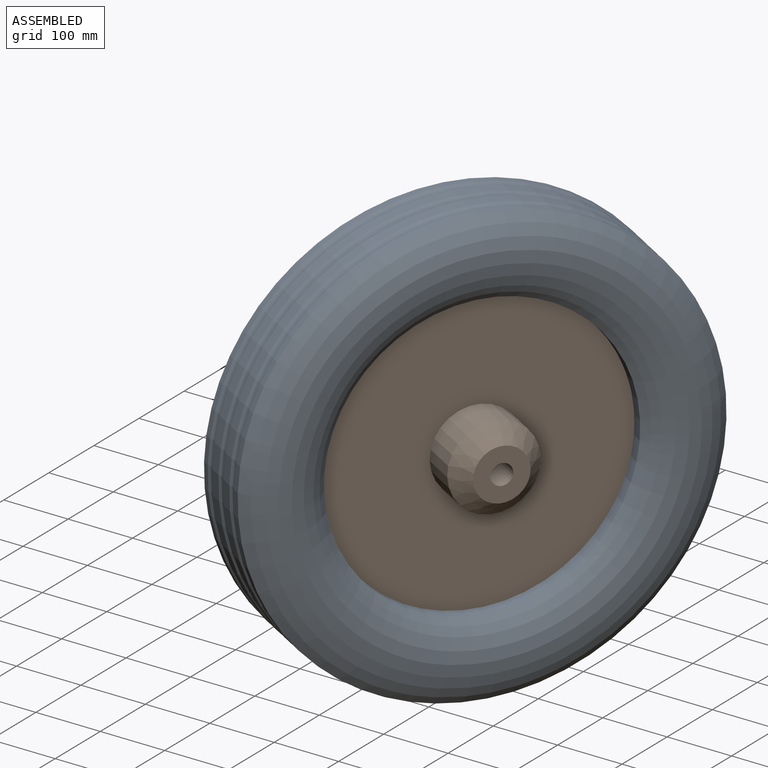
[diagram: assembled view]
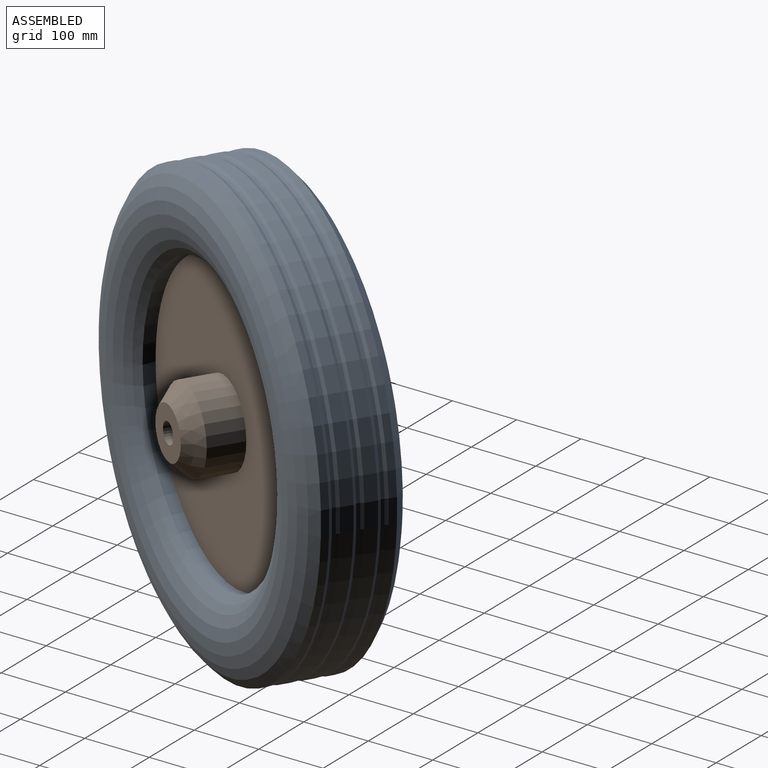
[diagram: assembled view, second angle]
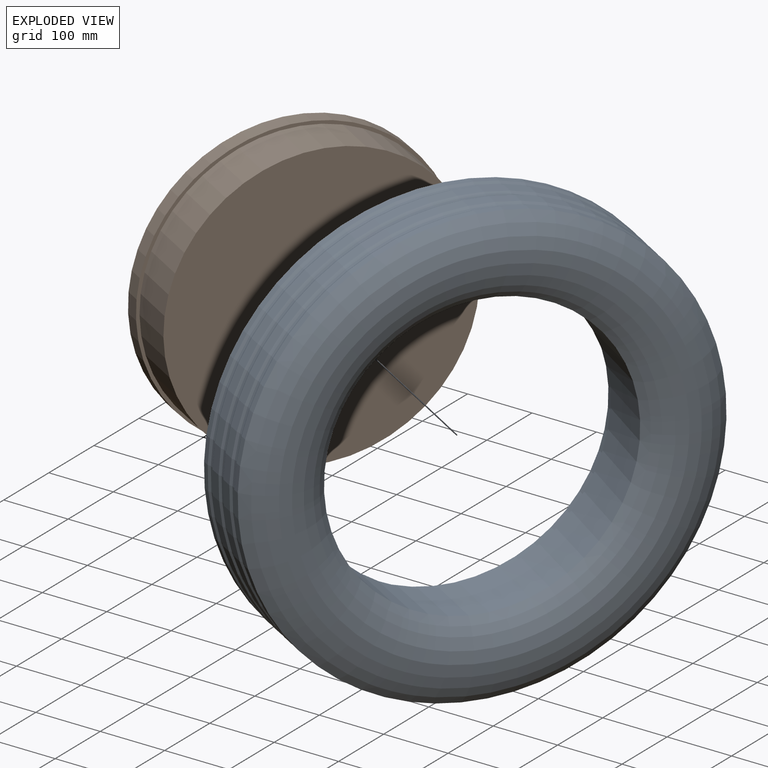
[diagram: exploded view]
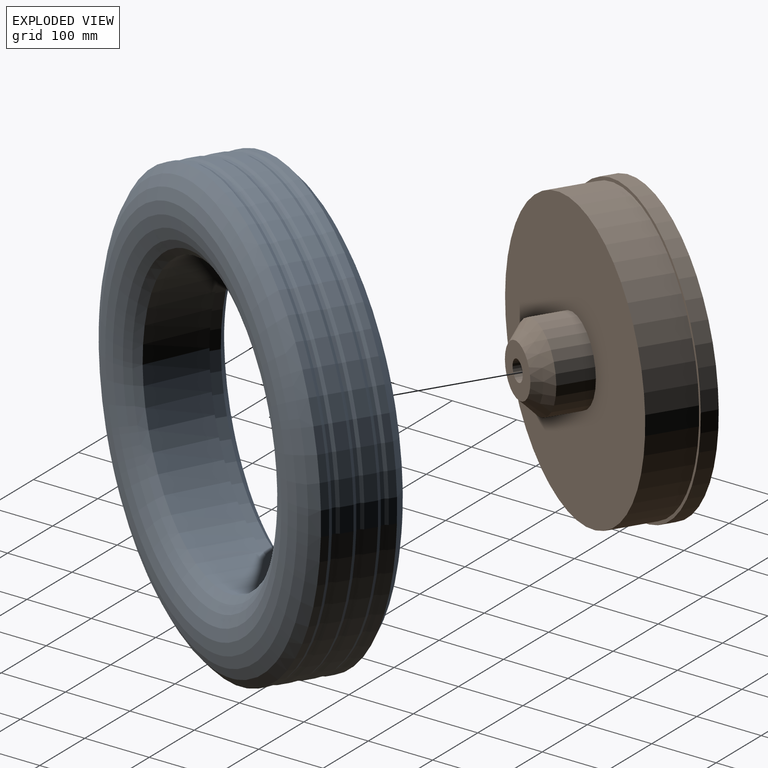
[diagram: exploded view, second angle]
ASSEMBLY  parts=2 mates=2
PART A: 12 faces, bbox 160x779.3x779.3 mm
  f0: cylinder r=220mm len=440mm, axis (1,0,0), area 128436.5mm2, adj f1,f11
  f1: torus R=280mm, axis (-1,0,0), area 238718.2mm2, adj f0,f3
  f2: torus R=280mm, axis (-1,0,0), area 228651.9mm2, adj f4,f10
  f3: cylinder r=340mm len=680mm, axis (-1,0,0), area 24385.7mm2, adj f1,f6
  f4: cylinder r=340mm len=680mm, axis (-1,0,0), area 24385.7mm2, adj f2,f5
  f5: torus R=350mm, axis (1,0,0), area 34200.2mm2, adj f4,f9
  f6: torus R=350mm, axis (1,0,0), area 34200.2mm2, adj f3,f7
  f7: cylinder r=340mm len=680mm, axis (-1,0,0), area 40589.4mm2, adj f6,f8
  f8: torus R=350mm, axis (1,0,0), area 34200.2mm2, adj f7,f9
  f9: cylinder r=340mm len=680mm, axis (-1,0,0), area 40589.4mm2, adj f5,f8
  f10: cylinder r=225mm len=450mm, axis (1,0,0), area 25580.9mm2, adj f2,f11
  f11: plane 450x450mm, normal (1,0,0), area 6990mm2, adj f0,f10
PART B: 13 faces, bbox 180x476.3x476.3 mm
  f0: plane 450x450mm, normal (1,0,0), area 6990mm2, adj f2,f12
  f1: plane 160x160mm, normal (1,0,0), area 19301.9mm2, adj f8,f11
  f2: cylinder r=225mm len=450mm, axis (1,0,0), area 35342.9mm2, adj f0,f3
  f3: plane 450x450mm, normal (-1,0,0), area 6990mm2, adj f2,f4
  f4: cylinder r=220mm len=440mm, axis (1,0,0), area 103672.6mm2, adj f3,f5
  f5: plane 440x440mm, normal (-1,0,0), area 138779.9mm2, adj f4,f6
  f6: cylinder r=65mm len=130mm, axis (1,0,0), area 22462.4mm2, adj f5,f9
  f7: plane 80x80mm, normal (-1,0,0), area 4222.3mm2, adj f8,f9
  f8: cylinder r=16mm len=180mm, axis (1,0,0), area 18095.6mm2, adj f1,f7
  f9: cone r=65mm half-angle=45deg, axis (1,0,0), area 11662.6mm2, adj f6,f7
  f10: cylinder r=205mm len=410mm, axis (1,0,0), area 25761.1mm2, adj f11,f12
  f11: cone r=205mm half-angle=74.4deg, axis (-1,0,0), area 116223.7mm2, adj f1,f10
  f12: torus R=220mm, axis (1,0,0), area 31156mm2, adj f0,f10
PLACE A rot(axis=(0.01,0.05,1),148.9deg) t=(-1584.38,-4341.47,2855.22)mm
PLACE B rot(axis=(0.01,0.05,1),148.9deg) t=(-1640.03,-4307.89,2854.64)mm
MATE cylindrical A.f0 <-> B.f4  axis (-0.86,0.52,-0.01) through (-1578.85,-4344.8,2855.27)mm
MATE planar B.f2 <-> A.f10  axis (0.86,-0.52,0.01) through (-1618.63,-4320.8,2854.86)mm
